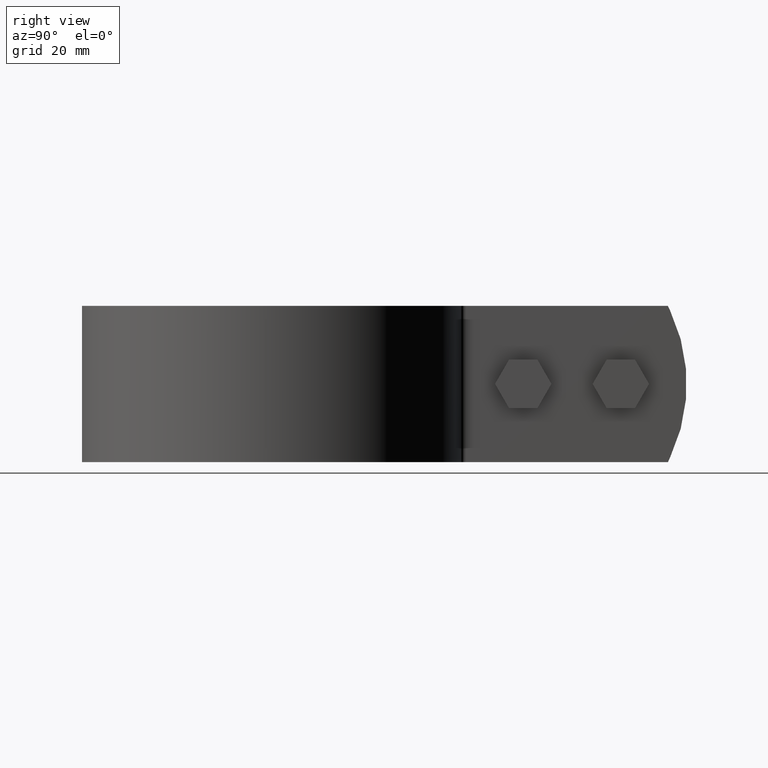
[diagram: clean part render]
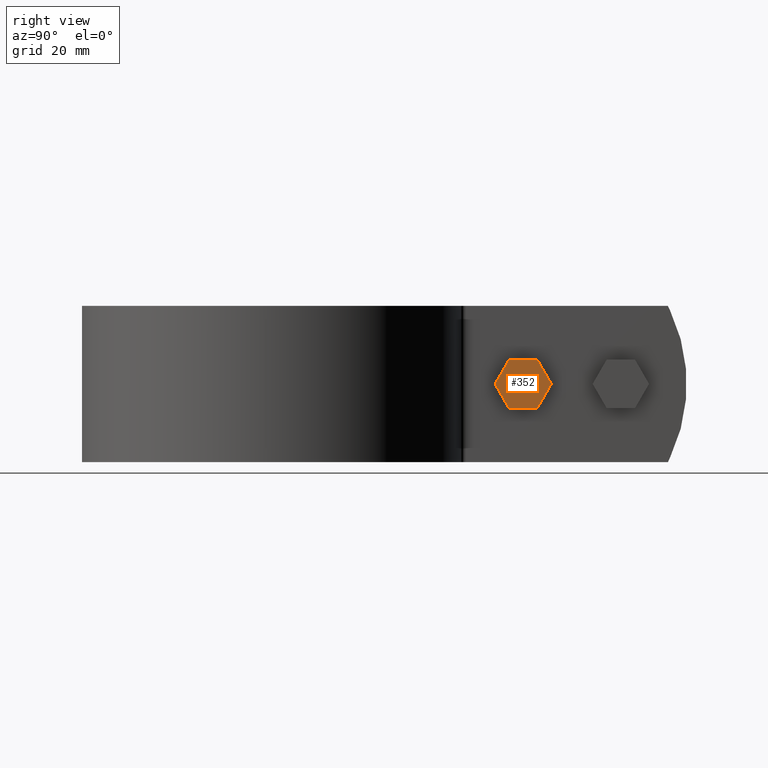
[diagram: same view with one face highlighted and labeled with its STEP entity id]
A machine part, right view. The second image highlights one B-rep face of the part: STEP entity #352.
In plain terms, the highlighted planar face has unit normal (-1, 0, 0).
Its self-contained STEP definition (entity closure, byte-faithful):
#352 = ADVANCED_FACE( '', ( #556 ), #557, .F. );
#556 = FACE_OUTER_BOUND( '', #764, .T. );
#557 = PLANE( '', #765 );
#764 = EDGE_LOOP( '', ( #1411, #1412, #1413, #1414, #1415, #1416 ) );
#765 = AXIS2_PLACEMENT_3D( '', #1417, #1418, #1419 );
#1411 = ORIENTED_EDGE( '', *, *, #1637, .T. );
#1412 = ORIENTED_EDGE( '', *, *, #1640, .T. );
#1413 = ORIENTED_EDGE( '', *, *, #1643, .T. );
#1414 = ORIENTED_EDGE( '', *, *, #1644, .T. );
#1415 = ORIENTED_EDGE( '', *, *, #1645, .T. );
#1416 = ORIENTED_EDGE( '', *, *, #1646, .T. );
#1417 = CARTESIAN_POINT( '', ( 9.50000000000001, 42.7234165868456, -5.00000000000000 ) );
#1418 = DIRECTION( '', ( -1.00000000000000, 6.06692130572647E-017, 0.000000000000000 ) );
#1419 = DIRECTION( '', ( 0.000000000000000, 0.000000000000000, 1.00000000000000 ) );
#1637 = EDGE_CURVE( '', #1970, #1968, #1971, .T. );
#1640 = EDGE_CURVE( '', #1968, #1973, #1975, .T. );
#1643 = EDGE_CURVE( '', #1973, #1980, #1981, .T. );
#1644 = EDGE_CURVE( '', #1980, #1982, #1983, .T. );
#1645 = EDGE_CURVE( '', #1982, #1984, #1985, .T. );
#1646 = EDGE_CURVE( '', #1984, #1970, #1986, .T. );
#1968 = VERTEX_POINT( '', #2520 );
#1970 = VERTEX_POINT( '', #2523 );
#1971 = LINE( '', #2524, #2525 );
#1973 = VERTEX_POINT( '', #2528 );
#1975 = LINE( '', #2531, #2532 );
#1980 = VERTEX_POINT( '', #2537 );
#1981 = LINE( '', #2538, #2539 );
#1982 = VERTEX_POINT( '', #2540 );
#1983 = LINE( '', #2541, #2542 );
#1984 = VERTEX_POINT( '', #2543 );
#1985 = LINE( '', #2544, #2545 );
#1986 = LINE( '', #2546, #2547 );
#2520 = CARTESIAN_POINT( '', ( 9.50000000000001, 54.2704219706381, -5.00000000000000 ) );
#2523 = CARTESIAN_POINT( '', ( 9.50000000000001, 48.4969192787419, -5.00000000000000 ) );
#2524 = CARTESIAN_POINT( '', ( 9.50000000000001, 48.4969192787419, -5.00000000000000 ) );
#2525 = VECTOR( '', #2863, 1000.00000000000 );
#2528 = CARTESIAN_POINT( '', ( 9.50000000000001, 57.1571733165862, -8.67361737988404E-016 ) );
#2531 = CARTESIAN_POINT( '', ( 9.50000000000001, 54.2704219706381, -5.00000000000000 ) );
#2532 = VECTOR( '', #2866, 1000.00000000000 );
#2537 = CARTESIAN_POINT( '', ( 9.50000000000001, 54.2704219706381, 5.00000000000000 ) );
#2538 = CARTESIAN_POINT( '', ( 9.50000000000001, 57.1571733165862, -1.22087514200374E-015 ) );
#2539 = VECTOR( '', #2873, 1000.00000000000 );
#2540 = CARTESIAN_POINT( '', ( 9.50000000000001, 48.4969192787419, 5.00000000000000 ) );
#2541 = CARTESIAN_POINT( '', ( 9.50000000000001, 54.2704219706381, 5.00000000000000 ) );
#2542 = VECTOR( '', #2874, 1000.00000000000 );
#2543 = CARTESIAN_POINT( '', ( 9.50000000000001, 45.6101679327937, -8.67361737988404E-016 ) );
#2544 = CARTESIAN_POINT( '', ( 9.50000000000001, 48.4969192787419, 5.00000000000000 ) );
#2545 = VECTOR( '', #2875, 1000.00000000000 );
#2546 = CARTESIAN_POINT( '', ( 9.50000000000001, 45.6101679327937, 1.93178474057610E-016 ) );
#2547 = VECTOR( '', #2876, 1000.00000000000 );
#2863 = DIRECTION( '', ( 6.06692130572647E-017, 1.00000000000000, -3.00462919747432E-016 ) );
#2866 = DIRECTION( '', ( 3.03346065286324E-017, 0.500000000000000, 0.866025403784439 ) );
#2873 = DIRECTION( '', ( -3.03346065286324E-017, -0.500000000000000, 0.866025403784439 ) );
#2874 = DIRECTION( '', ( -6.06692130572647E-017, -1.00000000000000, 0.000000000000000 ) );
#2875 = DIRECTION( '', ( -3.03346065286324E-017, -0.500000000000000, -0.866025403784439 ) );
#2876 = DIRECTION( '', ( 3.03346065286324E-017, 0.500000000000000, -0.866025403784439 ) );